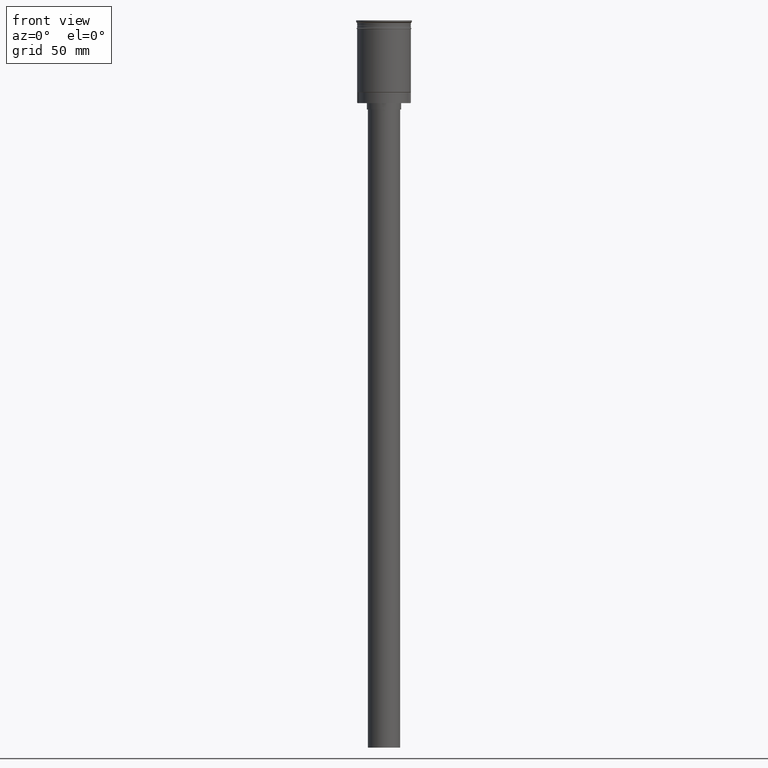
[diagram: clean part render]
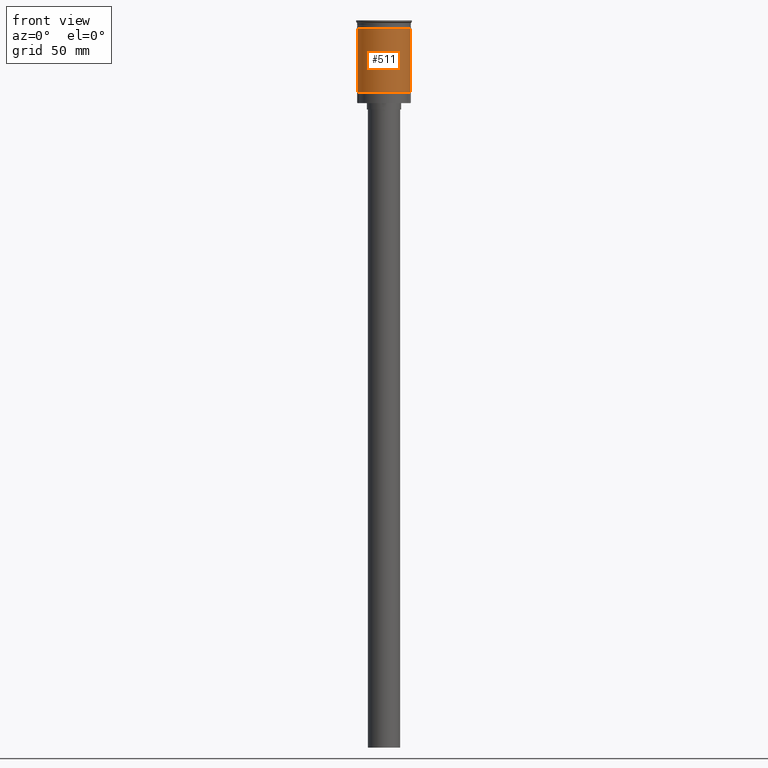
[diagram: same view with one face highlighted and labeled with its STEP entity id]
A machine part, front view. The second image highlights one B-rep face of the part: STEP entity #511.
In plain terms, the highlighted cylindrical surface (edge-blend (fillet) strip) has radius 12.5 mm, axis along (-0, -0, 1).
Its self-contained STEP definition (entity closure, byte-faithful):
#62 = VECTOR ( 'NONE', #221, 1000.000000000000000 ) ;
#78 = FACE_OUTER_BOUND ( 'NONE', #833, .T. ) ;
#104 = EDGE_CURVE ( 'NONE', #486, #197, #1588, .T. ) ;
#114 = AXIS2_PLACEMENT_3D ( 'NONE', #443, #942, #933 ) ;
#118 = CIRCLE ( 'NONE', #1495, 12.49999999999999822 ) ;
#169 = ORIENTED_EDGE ( 'NONE', *, *, #456, .T. ) ;
#197 = VERTEX_POINT ( 'NONE', #1542 ) ;
#221 = DIRECTION ( 'NONE',  ( -0.000000000000000000, -0.000000000000000000, 1.000000000000000000 ) ) ;
#250 = CARTESIAN_POINT ( 'NONE',  ( 0.000000000000000000, 0.000000000000000000, -33.29999999999996874 ) ) ;
#265 = CARTESIAN_POINT ( 'NONE',  ( 12.49999999999999822, 0.000000000000000000, -3.999999999999996447 ) ) ;
#266 = DIRECTION ( 'NONE',  ( -0.000000000000000000, -0.000000000000000000, 1.000000000000000000 ) ) ;
#385 = DIRECTION ( 'NONE',  ( 1.000000000000000000, 0.000000000000000000, 0.000000000000000000 ) ) ;
#393 = VERTEX_POINT ( 'NONE', #436 ) ;
#436 = CARTESIAN_POINT ( 'NONE',  ( -12.50000000000000000, 1.530808498934191521E-15, -3.999999999999996447 ) ) ;
#443 = CARTESIAN_POINT ( 'NONE',  ( 0.000000000000000000, 0.000000000000000000, 0.000000000000000000 ) ) ;
#456 = EDGE_CURVE ( 'NONE', #197, #585, #703, .T. ) ;
#486 = VERTEX_POINT ( 'NONE', #597 ) ;
#493 = DIRECTION ( 'NONE',  ( -1.000000000000000000, 0.000000000000000000, 0.000000000000000000 ) ) ;
#511 = ADVANCED_FACE ( 'NONE', ( #78 ), #1065, .T. ) ;
#585 = VERTEX_POINT ( 'NONE', #265 ) ;
#597 = CARTESIAN_POINT ( 'NONE',  ( -12.49999999999999289, 0.000000000000000000, -33.29999999999996874 ) ) ;
#703 = LINE ( 'NONE', #837, #62 ) ;
#725 = EDGE_CURVE ( 'NONE', #486, #393, #1471, .T. ) ;
#757 = AXIS2_PLACEMENT_3D ( 'NONE', #250, #986, #493 ) ;
#784 = ORIENTED_EDGE ( 'NONE', *, *, #725, .F. ) ;
#833 = EDGE_LOOP ( 'NONE', ( #784, #1016, #169, #1189 ) ) ;
#837 = CARTESIAN_POINT ( 'NONE',  ( 12.49999999999999645, 0.000000000000000000, 0.000000000000000000 ) ) ;
#843 = DIRECTION ( 'NONE',  ( -0.000000000000000000, -0.000000000000000000, 1.000000000000000000 ) ) ;
#933 = DIRECTION ( 'NONE',  ( 1.000000000000000000, 0.000000000000000000, 0.000000000000000000 ) ) ;
#942 = DIRECTION ( 'NONE',  ( -0.000000000000000000, -0.000000000000000000, 1.000000000000000000 ) ) ;
#975 = CARTESIAN_POINT ( 'NONE',  ( -12.49999999999999645, 1.530808498934191127E-15, 0.000000000000000000 ) ) ;
#986 = DIRECTION ( 'NONE',  ( -0.000000000000000000, -0.000000000000000000, 1.000000000000000000 ) ) ;
#1016 = ORIENTED_EDGE ( 'NONE', *, *, #104, .T. ) ;
#1065 = CYLINDRICAL_SURFACE ( 'NONE', #114, 12.49999999999999645 ) ;
#1189 = ORIENTED_EDGE ( 'NONE', *, *, #1350, .F. ) ;
#1301 = VECTOR ( 'NONE', #843, 1000.000000000000000 ) ;
#1350 = EDGE_CURVE ( 'NONE', #393, #585, #118, .T. ) ;
#1443 = CARTESIAN_POINT ( 'NONE',  ( 0.000000000000000000, 0.000000000000000000, -3.999999999999996447 ) ) ;
#1471 = LINE ( 'NONE', #975, #1301 ) ;
#1495 = AXIS2_PLACEMENT_3D ( 'NONE', #1443, #266, #385 ) ;
#1542 = CARTESIAN_POINT ( 'NONE',  ( 12.49999999999999645, 1.530808498934191127E-15, -33.29999999999996874 ) ) ;
#1588 = CIRCLE ( 'NONE', #757, 12.49999999999999645 ) ;